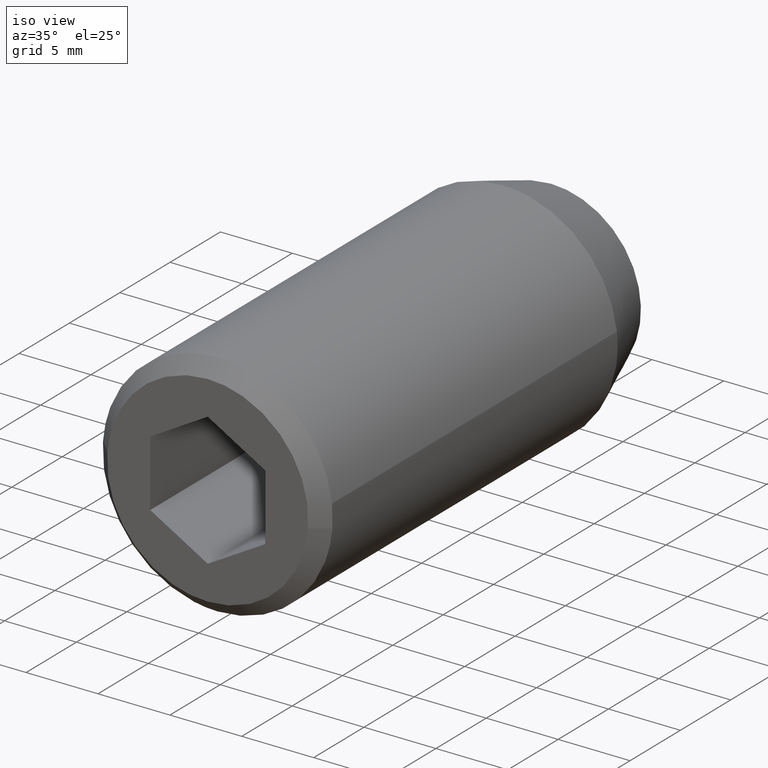
[diagram: clean part render]
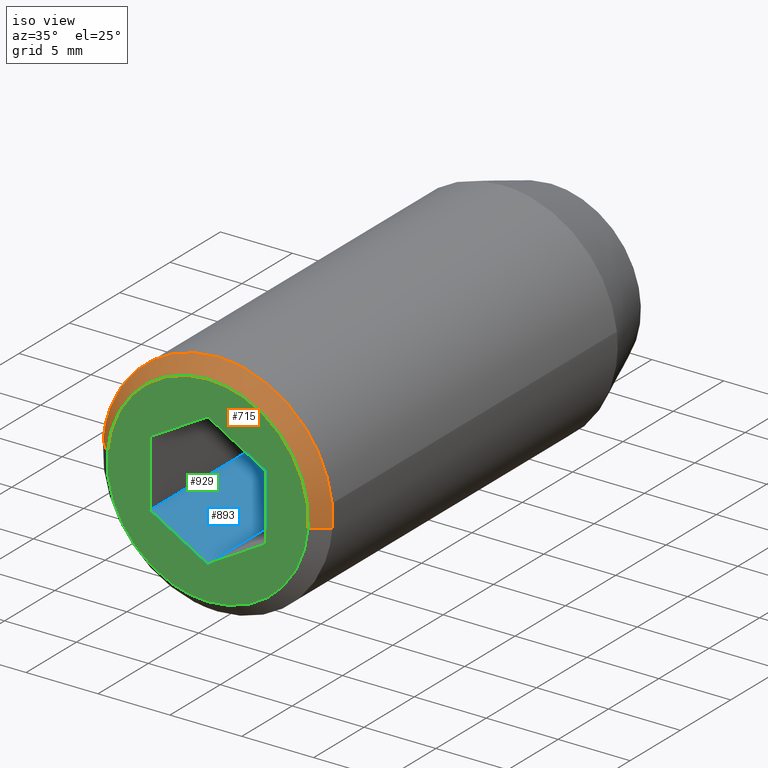
[diagram: same view with three faces highlighted in distinct colors, each labeled with its STEP entity id]
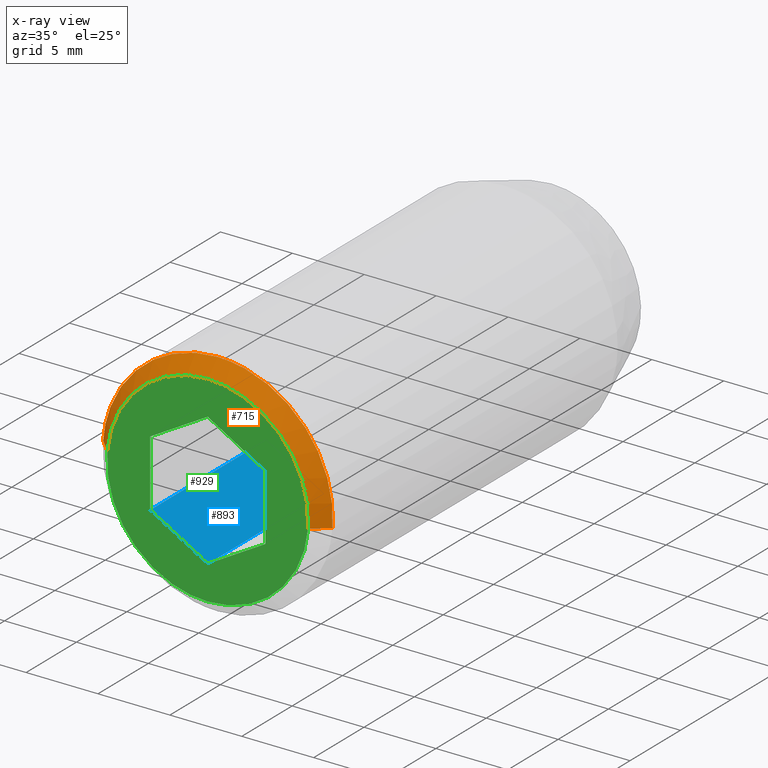
[diagram: x-ray of the same camera — body ghosted, the three highlighted faces saturated]
A machine part, iso view with three faces highlighted in distinct colors.
The next image is the same camera in x-ray (body ghosted, the three faces saturated) — at least one of them is partly hidden behind the body in this view.
Their STEP definitions:

[orange] entity #715 — the highlighted face is a freeform B-spline surface patch.
#453=CARTESIAN_POINT('',(7.947753547483732,-33.099999999999987,0.912805317940099));
#454=VERTEX_POINT('',#453);
#455=CARTESIAN_POINT('',(0.0,-33.099999999999987,7.999999999999998));
#456=VERTEX_POINT('',#455);
#457=CARTESIAN_POINT('',(7.947753547483732,-33.099999999999994,0.912805317940099));
#458=CARTESIAN_POINT('',(7.133784045720198,-33.099999999999994,7.999999999999999));
#459=CARTESIAN_POINT('',(0.0,-33.099999999999987,7.999999999999998));
#467=(BOUNDED_CURVE()B_SPLINE_CURVE(2,(#457,#458,#459),.UNSPECIFIED.,.F.,.U.)B_SPLINE_CURVE_WITH_KNOTS((3,3),(0.269767755877342,0.500000000000000),.UNSPECIFIED.)CURVE()GEOMETRIC_REPRESENTATION_ITEM()RATIONAL_B_SPLINE_CURVE((0.957343736459217,0.730266147777081,1.0))REPRESENTATION_ITEM(''));
#468=EDGE_CURVE('',#454,#456,#467,.T.);
#484=CARTESIAN_POINT('',(-7.975338669866337,-33.099999999996683,0.627672765848300));
#485=VERTEX_POINT('',#484);
#499=CARTESIAN_POINT('',(0.0,-33.099999999999987,7.999999999999998));
#500=CARTESIAN_POINT('',(-7.395123933218637,-33.100000000000001,7.999999999999999));
#501=CARTESIAN_POINT('',(-7.975338669866337,-33.099999999996690,0.627672765848300));
#509=(BOUNDED_CURVE()B_SPLINE_CURVE(2,(#499,#500,#501),.UNSPECIFIED.,.F.,.U.)B_SPLINE_CURVE_WITH_KNOTS((3,3),(0.500000000000000,0.736331300631680),.UNSPECIFIED.)CURVE()GEOMETRIC_REPRESENTATION_ITEM()RATIONAL_B_SPLINE_CURVE((1.0,0.723120658606470,0.969723356169548))REPRESENTATION_ITEM(''));
#510=EDGE_CURVE('',#456,#485,#509,.T.);
#537=CARTESIAN_POINT('',(7.975338669866336,-33.099999999996683,-0.627672765848304));
#538=VERTEX_POINT('',#537);
#539=CARTESIAN_POINT('',(7.975338669866337,-33.099999999996683,-0.627672765848304));
#540=CARTESIAN_POINT('',(8.000000000000002,-33.100000000000001,-0.314320856086756));
#541=CARTESIAN_POINT('',(8.0,-33.099999999999987,-1.291960E-015));
#542=CARTESIAN_POINT('',(8.0,-33.099999999999994,0.457897880219725));
#543=CARTESIAN_POINT('',(7.947753547483732,-33.099999999999994,0.912805317940099));
#551=(BOUNDED_CURVE()B_SPLINE_CURVE(2,(#539,#540,#541,#542,#543),.UNSPECIFIED.,.F.,.U.)B_SPLINE_CURVE_WITH_KNOTS((3,2,3),(0.236331300631680,0.250000000000000,0.269767755877342),.UNSPECIFIED.)CURVE()GEOMETRIC_REPRESENTATION_ITEM()RATIONAL_B_SPLINE_CURVE((0.969723356169548,0.983986122580078,1.0,0.976840633409467,0.957343736459217))REPRESENTATION_ITEM(''));
#552=EDGE_CURVE('',#538,#454,#551,.T.);
#611=CARTESIAN_POINT('',(6.978421336135515,-34.099999999990906,-0.549213670164834));
#612=VERTEX_POINT('',#611);
#613=CARTESIAN_POINT('',(6.978421336135515,-34.099999999990906,-0.549213670164834));
#614=CARTESIAN_POINT('',(7.975338669866336,-33.099999999996683,-0.627672765848304));
#615=QUASI_UNIFORM_CURVE('',1,(#613,#614),.UNSPECIFIED.,.F.,.U.);
#616=EDGE_CURVE('',#612,#538,#615,.T.);
#633=CARTESIAN_POINT('',(-6.978421336135515,-34.099999999990906,0.549213670164833));
#634=VERTEX_POINT('',#633);
#650=CARTESIAN_POINT('',(-6.978421336135515,-34.099999999990906,0.549213670164833));
#651=CARTESIAN_POINT('',(-7.975338669866337,-33.099999999996683,0.627672765848300));
#652=QUASI_UNIFORM_CURVE('',1,(#650,#651),.UNSPECIFIED.,.F.,.U.);
#653=EDGE_CURVE('',#634,#485,#652,.T.);
#660=CARTESIAN_POINT('',(-6.953498402788565,-34.125000000000000,0.547252192701721));
#661=CARTESIAN_POINT('',(-6.406246210086843,-34.125000000000007,7.500750595490286));
#662=CARTESIAN_POINT('',(0.547252192701723,-34.125000000000000,6.953498402788564));
#663=CARTESIAN_POINT('',(7.500750595490287,-34.125000000000007,6.406246210086841));
#664=CARTESIAN_POINT('',(6.953498402788565,-34.125000000000000,-0.547252192701724));
#665=CARTESIAN_POINT('',(-8.000884676541947,-33.074374999999989,0.629683280150790));
#666=CARTESIAN_POINT('',(-7.371201396391154,-33.074374999999989,8.630567956692737));
#667=CARTESIAN_POINT('',(0.629683280150792,-33.074374999999989,8.000884676541945));
#668=CARTESIAN_POINT('',(8.630567956692740,-33.074374999999989,7.371201396391154));
#669=CARTESIAN_POINT('',(8.000884676541947,-33.074374999999989,-0.629683280150793));
#677=(BOUNDED_SURFACE()B_SPLINE_SURFACE(2,1,((#660,#665),(#661,#666),(#662,#667),(#663,#668),(#664,#669)),.UNSPECIFIED.,.F.,.F.,.U.)B_SPLINE_SURFACE_WITH_KNOTS((3,2,3),(2,2),(0.0,13.297290886082310,26.594581772164609),(0.0,1.0),.UNSPECIFIED.)GEOMETRIC_REPRESENTATION_ITEM()RATIONAL_B_SPLINE_SURFACE(((1.0,1.0),(0.707106781186548,0.707106781186548),(1.0,1.0),(0.707106781186548,0.707106781186548),(1.0,1.0)))REPRESENTATION_ITEM('')SURFACE());
#678=ORIENTED_EDGE('',*,*,#552,.T.);
#679=ORIENTED_EDGE('',*,*,#468,.T.);
#680=ORIENTED_EDGE('',*,*,#510,.T.);
#681=ORIENTED_EDGE('',*,*,#653,.F.);
#682=CARTESIAN_POINT('',(0.0,-34.100000000000001,6.999999999999999));
#683=VERTEX_POINT('',#682);
#684=CARTESIAN_POINT('',(0.0,-34.100000000000001,6.999999999999999));
#685=CARTESIAN_POINT('',(-6.470733441478701,-34.100000000000009,6.999999999999999));
#686=CARTESIAN_POINT('',(-6.978421336135515,-34.099999999990906,0.549213670164833));
#694=(BOUNDED_CURVE()B_SPLINE_CURVE(2,(#684,#685,#686),.UNSPECIFIED.,.F.,.U.)B_SPLINE_CURVE_WITH_KNOTS((3,3),(0.500000000000000,0.736331300629367),.UNSPECIFIED.)CURVE()GEOMETRIC_REPRESENTATION_ITEM()RATIONAL_B_SPLINE_CURVE((1.0,0.723120658609180,0.969723356164719))REPRESENTATION_ITEM(''));
#695=EDGE_CURVE('',#683,#634,#694,.T.);
#696=ORIENTED_EDGE('',*,*,#695,.F.);
#697=CARTESIAN_POINT('',(6.978421336135515,-34.099999999990914,-0.549213670164834));
#698=CARTESIAN_POINT('',(7.0,-34.100000000000009,-0.275030749123213));
#699=CARTESIAN_POINT('',(7.0,-34.100000000000001,-1.291960E-015));
#700=CARTESIAN_POINT('',(6.999999999999999,-34.100000000000001,6.999999999999999));
#701=CARTESIAN_POINT('',(0.0,-34.100000000000001,6.999999999999999));
#709=(BOUNDED_CURVE()B_SPLINE_CURVE(2,(#697,#698,#699,#700,#701),.UNSPECIFIED.,.F.,.U.)B_SPLINE_CURVE_WITH_KNOTS((3,2,3),(0.236331300629367,0.250000000000000,0.500000000000000),.UNSPECIFIED.)CURVE()GEOMETRIC_REPRESENTATION_ITEM()RATIONAL_B_SPLINE_CURVE((0.969723356164720,0.983986122577368,1.0,0.707106781186547,1.0))REPRESENTATION_ITEM(''));
#710=EDGE_CURVE('',#612,#683,#709,.T.);
#711=ORIENTED_EDGE('',*,*,#710,.F.);
#712=ORIENTED_EDGE('',*,*,#616,.T.);
#713=EDGE_LOOP('',(#678,#679,#680,#681,#696,#711,#712));
#714=FACE_OUTER_BOUND('',#713,.T.);
#715=ADVANCED_FACE('',(#714),#677,.T.);

[blue] entity #893 — the highlighted face is a freeform B-spline surface patch.
#735=CARTESIAN_POINT('',(-4.0,-22.600000000000001,-2.309401000000000));
#736=VERTEX_POINT('',#735);
#742=CARTESIAN_POINT('',(0.0,-22.600000000000001,-4.618802000000000));
#743=VERTEX_POINT('',#742);
#744=CARTESIAN_POINT('',(-4.0,-22.600000000000001,-2.309401000000000));
#745=CARTESIAN_POINT('',(0.0,-22.600000000000001,-4.618802000000000));
#746=QUASI_UNIFORM_CURVE('',1,(#744,#745),.UNSPECIFIED.,.F.,.U.);
#747=EDGE_CURVE('',#736,#743,#746,.T.);
#855=CARTESIAN_POINT('',(0.0,-34.100000000000001,-4.618802000000000));
#856=VERTEX_POINT('',#855);
#864=CARTESIAN_POINT('',(0.0,-22.600000000000001,-4.618802000000000));
#865=CARTESIAN_POINT('',(0.0,-34.100000000000001,-4.618802000000000));
#866=QUASI_UNIFORM_CURVE('',1,(#864,#865),.UNSPECIFIED.,.F.,.U.);
#867=EDGE_CURVE('',#743,#856,#866,.T.);
#872=CARTESIAN_POINT('',(0.199800029796366,-34.674423317318123,-4.734156597152930));
#873=CARTESIAN_POINT('',(-4.199800101321936,-34.674423317318123,-2.194046361551755));
#874=CARTESIAN_POINT('',(0.199800029796366,-22.025575654501761,-4.734156597152930));
#875=CARTESIAN_POINT('',(-4.199800101321936,-22.025575654501761,-2.194046361551755));
#876=B_SPLINE_SURFACE_WITH_KNOTS('',1,1,((#872,#874),(#873,#875)),.UNSPECIFIED.,.F.,.F.,.U.,(2,2),(2,2),(0.0,5.080220597842385),(0.0,12.648847662816360),.UNSPECIFIED.);
#877=CARTESIAN_POINT('',(-4.0,-34.100000000000001,-2.309401000000000));
#878=VERTEX_POINT('',#877);
#879=CARTESIAN_POINT('',(-4.0,-34.100000000000001,-2.309401000000000));
#880=CARTESIAN_POINT('',(0.0,-34.100000000000001,-4.618802000000000));
#881=QUASI_UNIFORM_CURVE('',1,(#879,#880),.UNSPECIFIED.,.F.,.U.);
#882=EDGE_CURVE('',#878,#856,#881,.T.);
#883=ORIENTED_EDGE('',*,*,#882,.T.);
#884=ORIENTED_EDGE('',*,*,#867,.F.);
#885=ORIENTED_EDGE('',*,*,#747,.F.);
#886=CARTESIAN_POINT('',(-4.0,-22.600000000000001,-2.309401000000000));
#887=CARTESIAN_POINT('',(-4.0,-34.100000000000001,-2.309401000000000));
#888=QUASI_UNIFORM_CURVE('',1,(#886,#887),.UNSPECIFIED.,.F.,.U.);
#889=EDGE_CURVE('',#736,#878,#888,.T.);
#890=ORIENTED_EDGE('',*,*,#889,.T.);
#891=EDGE_LOOP('',(#883,#884,#885,#890));
#892=FACE_OUTER_BOUND('',#891,.T.);
#893=ADVANCED_FACE('',(#892),#876,.F.);

[green] entity #929 — the highlighted face is a freeform B-spline surface patch.
#611=CARTESIAN_POINT('',(6.978421336135515,-34.099999999990906,-0.549213670164834));
#612=VERTEX_POINT('',#611);
#618=CARTESIAN_POINT('',(0.0,-34.100000000000001,-7.000000000000001));
#619=VERTEX_POINT('',#618);
#620=CARTESIAN_POINT('',(0.0,-34.100000000000001,-7.000000000000001));
#621=CARTESIAN_POINT('',(6.470733441478718,-34.100000000000009,-7.000000000000002));
#622=CARTESIAN_POINT('',(6.978421336135515,-34.099999999990906,-0.549213670164834));
#630=(BOUNDED_CURVE()B_SPLINE_CURVE(2,(#620,#621,#622),.UNSPECIFIED.,.F.,.U.)B_SPLINE_CURVE_WITH_KNOTS((3,3),(0.0,0.236331300629367),.UNSPECIFIED.)CURVE()GEOMETRIC_REPRESENTATION_ITEM()RATIONAL_B_SPLINE_CURVE((1.0,0.723120658609180,0.969723356164720))REPRESENTATION_ITEM(''));
#631=EDGE_CURVE('',#619,#612,#630,.T.);
#633=CARTESIAN_POINT('',(-6.978421336135515,-34.099999999990906,0.549213670164833));
#634=VERTEX_POINT('',#633);
#635=CARTESIAN_POINT('',(-6.978421336135515,-34.099999999990906,0.549213670164833));
#636=CARTESIAN_POINT('',(-7.000000000000001,-34.100000000000016,0.275030749123211));
#637=CARTESIAN_POINT('',(-7.0,-34.100000000000001,-1.291960E-015));
#638=CARTESIAN_POINT('',(-6.999999999999999,-34.100000000000001,-7.000000000000002));
#639=CARTESIAN_POINT('',(0.0,-34.100000000000001,-7.000000000000001));
#647=(BOUNDED_CURVE()B_SPLINE_CURVE(2,(#635,#636,#637,#638,#639),.UNSPECIFIED.,.F.,.U.)B_SPLINE_CURVE_WITH_KNOTS((3,2,3),(0.736331300629367,0.750000000000000,1.0),.UNSPECIFIED.)CURVE()GEOMETRIC_REPRESENTATION_ITEM()RATIONAL_B_SPLINE_CURVE((0.969723356164720,0.983986122577367,1.0,0.707106781186547,1.0))REPRESENTATION_ITEM(''));
#648=EDGE_CURVE('',#634,#619,#647,.T.);
#682=CARTESIAN_POINT('',(0.0,-34.100000000000001,6.999999999999999));
#683=VERTEX_POINT('',#682);
#684=CARTESIAN_POINT('',(0.0,-34.100000000000001,6.999999999999999));
#685=CARTESIAN_POINT('',(-6.470733441478701,-34.100000000000009,6.999999999999999));
#686=CARTESIAN_POINT('',(-6.978421336135515,-34.099999999990906,0.549213670164833));
#694=(BOUNDED_CURVE()B_SPLINE_CURVE(2,(#684,#685,#686),.UNSPECIFIED.,.F.,.U.)B_SPLINE_CURVE_WITH_KNOTS((3,3),(0.500000000000000,0.736331300629367),.UNSPECIFIED.)CURVE()GEOMETRIC_REPRESENTATION_ITEM()RATIONAL_B_SPLINE_CURVE((1.0,0.723120658609180,0.969723356164719))REPRESENTATION_ITEM(''));
#695=EDGE_CURVE('',#683,#634,#694,.T.);
#697=CARTESIAN_POINT('',(6.978421336135515,-34.099999999990914,-0.549213670164834));
#698=CARTESIAN_POINT('',(7.0,-34.100000000000009,-0.275030749123213));
#699=CARTESIAN_POINT('',(7.0,-34.100000000000001,-1.291960E-015));
#700=CARTESIAN_POINT('',(6.999999999999999,-34.100000000000001,6.999999999999999));
#701=CARTESIAN_POINT('',(0.0,-34.100000000000001,6.999999999999999));
#709=(BOUNDED_CURVE()B_SPLINE_CURVE(2,(#697,#698,#699,#700,#701),.UNSPECIFIED.,.F.,.U.)B_SPLINE_CURVE_WITH_KNOTS((3,2,3),(0.236331300629367,0.250000000000000,0.500000000000000),.UNSPECIFIED.)CURVE()GEOMETRIC_REPRESENTATION_ITEM()RATIONAL_B_SPLINE_CURVE((0.969723356164720,0.983986122577368,1.0,0.707106781186547,1.0))REPRESENTATION_ITEM(''));
#710=EDGE_CURVE('',#612,#683,#709,.T.);
#783=CARTESIAN_POINT('',(0.0,-34.100000000000001,4.618802000000000));
#784=VERTEX_POINT('',#783);
#785=CARTESIAN_POINT('',(-4.0,-34.100000000000001,2.309401000000000));
#786=VERTEX_POINT('',#785);
#787=CARTESIAN_POINT('',(0.0,-34.100000000000001,4.618802000000000));
#788=CARTESIAN_POINT('',(-4.0,-34.100000000000001,2.309401000000000));
#789=QUASI_UNIFORM_CURVE('',1,(#787,#788),.UNSPECIFIED.,.F.,.U.);
#790=EDGE_CURVE('',#784,#786,#789,.T.);
#811=CARTESIAN_POINT('',(4.0,-34.100000000000001,2.309401000000000));
#812=VERTEX_POINT('',#811);
#813=CARTESIAN_POINT('',(4.0,-34.100000000000001,2.309401000000000));
#814=CARTESIAN_POINT('',(0.0,-34.100000000000001,4.618802000000000));
#815=QUASI_UNIFORM_CURVE('',1,(#813,#814),.UNSPECIFIED.,.F.,.U.);
#816=EDGE_CURVE('',#812,#784,#815,.T.);
#833=CARTESIAN_POINT('',(4.0,-34.100000000000001,-2.309401000000000));
#834=VERTEX_POINT('',#833);
#835=CARTESIAN_POINT('',(4.0,-34.100000000000001,-2.309401000000000));
#836=CARTESIAN_POINT('',(4.0,-34.100000000000001,2.309401000000000));
#837=QUASI_UNIFORM_CURVE('',1,(#835,#836),.UNSPECIFIED.,.F.,.U.);
#838=EDGE_CURVE('',#834,#812,#837,.T.);
#855=CARTESIAN_POINT('',(0.0,-34.100000000000001,-4.618802000000000));
#856=VERTEX_POINT('',#855);
#857=CARTESIAN_POINT('',(0.0,-34.100000000000001,-4.618802000000000));
#858=CARTESIAN_POINT('',(4.0,-34.100000000000001,-2.309401000000000));
#859=QUASI_UNIFORM_CURVE('',1,(#857,#858),.UNSPECIFIED.,.F.,.U.);
#860=EDGE_CURVE('',#856,#834,#859,.T.);
#877=CARTESIAN_POINT('',(-4.0,-34.100000000000001,-2.309401000000000));
#878=VERTEX_POINT('',#877);
#879=CARTESIAN_POINT('',(-4.0,-34.100000000000001,-2.309401000000000));
#880=CARTESIAN_POINT('',(0.0,-34.100000000000001,-4.618802000000000));
#881=QUASI_UNIFORM_CURVE('',1,(#879,#880),.UNSPECIFIED.,.F.,.U.);
#882=EDGE_CURVE('',#878,#856,#881,.T.);
#899=CARTESIAN_POINT('',(-4.0,-34.100000000000001,2.309401000000000));
#900=CARTESIAN_POINT('',(-4.0,-34.100000000000001,-2.309401000000000));
#901=QUASI_UNIFORM_CURVE('',1,(#899,#900),.UNSPECIFIED.,.F.,.U.);
#902=EDGE_CURVE('',#786,#878,#901,.T.);
#910=CARTESIAN_POINT('',(-7.697163269087961,-34.100000000000001,7.699299972865284));
#911=CARTESIAN_POINT('',(-7.697163269087961,-34.100000000000001,-7.699300348374545));
#912=CARTESIAN_POINT('',(7.697163644597224,-34.100000000000001,7.699299972865284));
#913=CARTESIAN_POINT('',(7.697163644597224,-34.100000000000001,-7.699300348374545));
#914=B_SPLINE_SURFACE_WITH_KNOTS('',1,1,((#910,#912),(#911,#913)),.UNSPECIFIED.,.F.,.F.,.U.,(2,2),(2,2),(0.0,15.398600321239829),(0.0,15.394326913685180),.UNSPECIFIED.);
#915=ORIENTED_EDGE('',*,*,#631,.T.);
#916=ORIENTED_EDGE('',*,*,#710,.T.);
#917=ORIENTED_EDGE('',*,*,#695,.T.);
#918=ORIENTED_EDGE('',*,*,#648,.T.);
#919=EDGE_LOOP('',(#915,#916,#917,#918));
#920=FACE_OUTER_BOUND('',#919,.T.);
#921=ORIENTED_EDGE('',*,*,#902,.F.);
#922=ORIENTED_EDGE('',*,*,#790,.F.);
#923=ORIENTED_EDGE('',*,*,#816,.F.);
#924=ORIENTED_EDGE('',*,*,#838,.F.);
#925=ORIENTED_EDGE('',*,*,#860,.F.);
#926=ORIENTED_EDGE('',*,*,#882,.F.);
#927=EDGE_LOOP('',(#921,#922,#923,#924,#925,#926));
#928=FACE_BOUND('',#927,.T.);
#929=ADVANCED_FACE('',(#920,#928),#914,.T.);